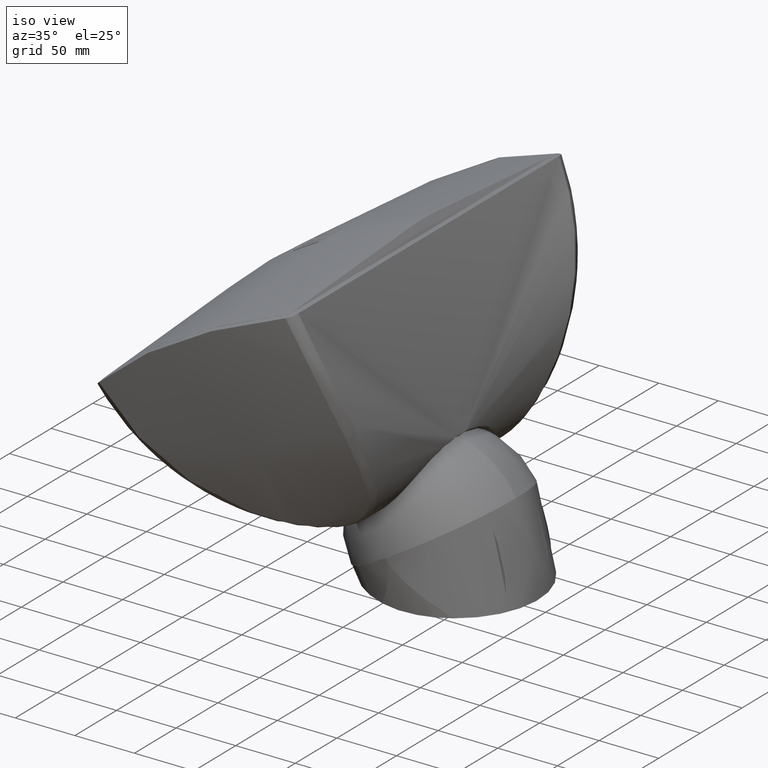
[diagram: clean part render]
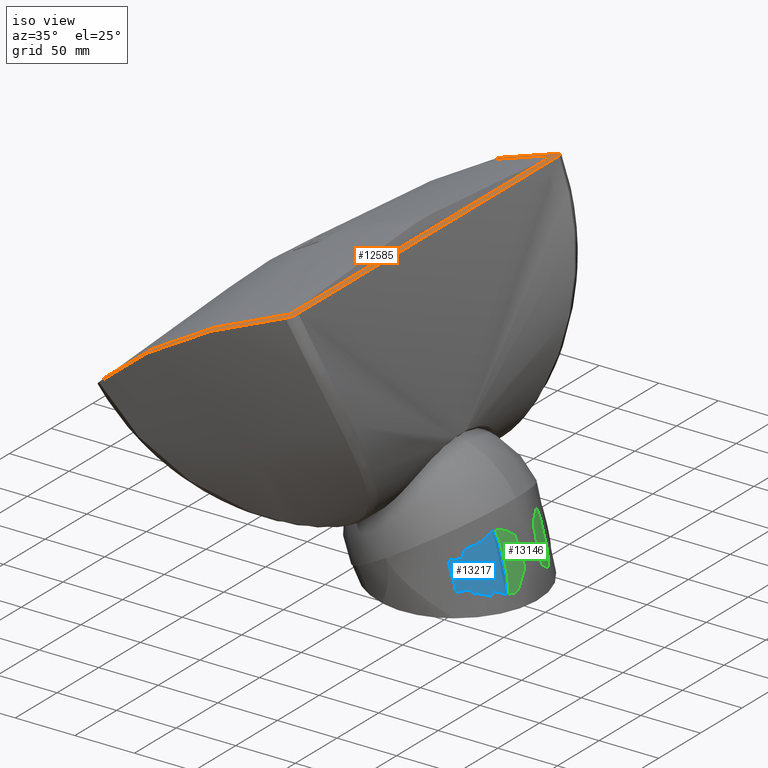
[diagram: same view with three faces highlighted in distinct colors, each labeled with its STEP entity id]
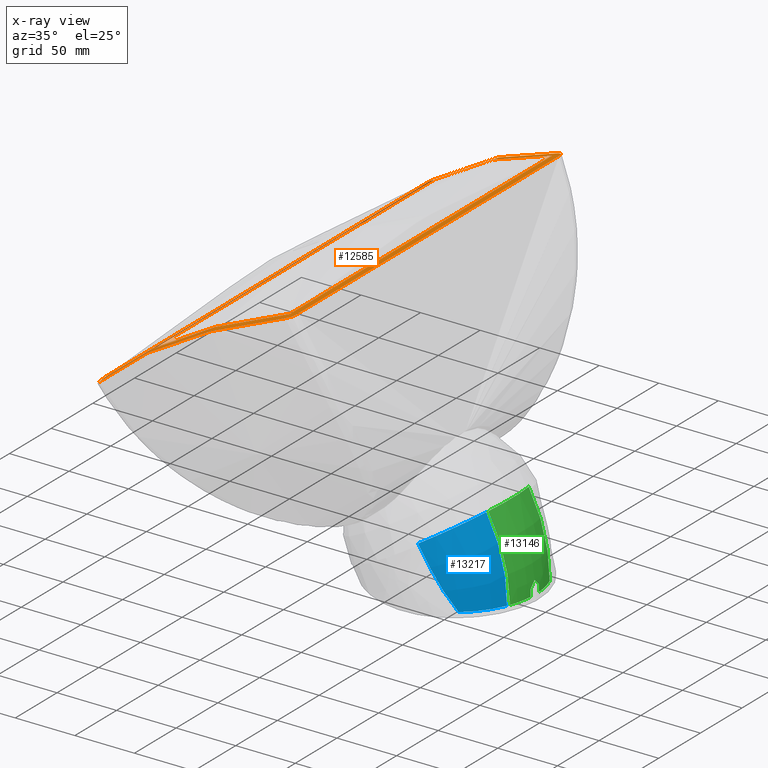
[diagram: x-ray of the same camera — body ghosted, the three highlighted faces saturated]
A machine part, iso view with three faces highlighted in distinct colors.
The next image is the same camera in x-ray (body ghosted, the three faces saturated) — at least one of them is partly hidden behind the body in this view.
Their STEP definitions:

[orange] entity #12585 — the highlighted face is a freeform B-spline surface patch.
#402=(
BOUNDED_SURFACE()
B_SPLINE_SURFACE(2,3,((#17975,#17976,#17977,#17978,#17979),(#17980,#17981,
#17982,#17983,#17984),(#17985,#17986,#17987,#17988,#17989)),
 .UNSPECIFIED.,.F.,.F.,.F.)
B_SPLINE_SURFACE_WITH_KNOTS((3,3),(4,1,4),(0.,1.),(0.,0.500000000000001,
1.),.UNSPECIFIED.)
GEOMETRIC_REPRESENTATION_ITEM()
RATIONAL_B_SPLINE_SURFACE(((1.,1.,1.,1.,1.),(0.931120962435819,0.931120962435819,
0.931120962435819,0.931120962435819,0.931120962435819),(1.,1.,1.,1.,1.)))
REPRESENTATION_ITEM('')
SURFACE()
);
#413=B_SPLINE_CURVE_WITH_KNOTS('',3,(#17627,#17628,#17629,#17630,#17631,
#17632,#17633,#17634,#17635,#17636,#17637,#17638,#17639,#17640),
 .UNSPECIFIED.,.F.,.F.,(4,2,2,2,2,2,4),(0.,7.87609388512865,15.7520777310479,
16.7373530918714,24.1191172242614,27.8088865304946,31.4986640254577),
 .UNSPECIFIED.);
#421=B_SPLINE_CURVE_WITH_KNOTS('',3,(#17961,#17962,#17963,#17964,#17965,
#17966,#17967,#17968,#17969,#17970,#17971,#17972,#17973,#17974),
 .UNSPECIFIED.,.F.,.F.,(4,2,2,2,2,2,4),(0.,7.87704079539368,15.7539733723026,
17.724263414675,24.6129060195072,28.0556022261401,31.4983050782141),
 .UNSPECIFIED.);
#422=B_SPLINE_CURVE_WITH_KNOTS('',3,(#17992,#17993,#17994,#17995,#17996,
#17997,#17998,#17999,#18000,#18001,#18002,#18003,#18004,#18005,#18006,#18007,
#18008,#18009),.UNSPECIFIED.,.F.,.F.,(4,2,2,2,2,2,2,2,4),(2.68450891936898E-5,
5.56382617109531,9.61055134631679,13.1921214229599,15.6720480374718,18.1520085031111,
21.7337465229039,25.7803270136378,31.3438646637583),.UNSPECIFIED.);
#423=B_SPLINE_CURVE_WITH_KNOTS('',3,(#18011,#18012,#18013,#18014,#18015,
#18016,#18017,#18018,#18019,#18020),.UNSPECIFIED.,.F.,.F.,(4,2,2,2,4),(-1.03590919254707,
-0.785224416782149,-0.517945613702384,-0.252065884385332,-3.11445588125187E-6),
 .UNSPECIFIED.);
#424=B_SPLINE_CURVE_WITH_KNOTS('',3,(#18022,#18023,#18024,#18025,#18026,
#18027,#18028,#18029,#18030,#18031),.UNSPECIFIED.,.F.,.F.,(4,2,2,2,4),(-18.3832821083283,
-13.789012530916,-9.1916730681031,-4.59431292214568,-2.25578076552983E-5),
 .UNSPECIFIED.);
#425=B_SPLINE_CURVE_WITH_KNOTS('',3,(#18033,#18034,#18035,#18036,#18037,
#18038,#18039,#18040,#18041,#18042),.UNSPECIFIED.,.F.,.F.,(4,2,2,2,4),(-1.03517453424356,
-0.78328979134791,-0.517597775299924,-0.250507720370656,0.),
 .UNSPECIFIED.);
#426=B_SPLINE_CURVE_WITH_KNOTS('',3,(#18044,#18045,#18046,#18047,#18048,
#18049,#18050,#18051,#18052,#18053,#18054,#18055,#18056,#18057,#18058,#18059,
#18060,#18061),.UNSPECIFIED.,.F.,.F.,(4,2,2,2,2,2,2,2,4),(3.70868746909139E-6,
5.56385032472596,9.61058759368324,13.192119745279,15.6720386804238,18.1520067242622,
21.7337825152711,25.7803409067136,31.3438299862299),.UNSPECIFIED.);
#427=B_SPLINE_CURVE_WITH_KNOTS('',3,(#18063,#18064,#18065,#18066,#18067,
#18068,#18069,#18070,#18071,#18072),.UNSPECIFIED.,.F.,.F.,(4,2,2,2,4),(-1.03586328558509,
-0.78519674557488,-0.51793454913669,-0.25205911528729,-1.65899128819207E-6),
 .UNSPECIFIED.);
#428=B_SPLINE_CURVE_WITH_KNOTS('',3,(#18074,#18075,#18076,#18077,#18078,
#18079,#18080,#18081,#18082,#18083),.UNSPECIFIED.,.F.,.F.,(4,2,2,2,4),(-18.3832783106298,
-13.7889963829195,-9.19166258353587,-4.59430768048142,-5.37170009738423E-6),
 .UNSPECIFIED.);
#429=B_SPLINE_CURVE_WITH_KNOTS('',3,(#18084,#18085,#18086,#18087,#18088,
#18089,#18090,#18091,#18092,#18093),.UNSPECIFIED.,.F.,.F.,(4,2,2,2,4),(-1.03515402706293,
-0.783266516835018,-0.517574825697129,-0.25049617295026,0.),
 .UNSPECIFIED.);
#430=B_SPLINE_CURVE_WITH_KNOTS('',3,(#18094,#18095,#18096,#18097,#18098,
#18099,#18100,#18101,#18102,#18103,#18104,#18105,#18106,#18107,#18108,#18109,
#18110,#18111),.UNSPECIFIED.,.F.,.F.,(4,2,2,2,2,2,2,2,4),(-18.290635800128,
-15.7217306614471,-13.1519357563355,-11.4352116979474,-9.14544577123647,
-6.85612799114411,-5.1395045391761,-2.56940187084942,0.),.UNSPECIFIED.);
#431=B_SPLINE_CURVE_WITH_KNOTS('',3,(#18112,#18113,#18114,#18115,#18116,
#18117,#18118,#18119,#18120,#18121,#18122,#18123,#18124,#18125,#18126,#18127,
#18128,#18129),.UNSPECIFIED.,.F.,.F.,(4,2,2,2,2,2,2,2,4),(-18.2906358001325,
-15.7217306614498,-13.1519357563369,-11.4352116979488,-9.14544577123902,
-6.85612799114595,-5.13950453917711,-2.56940187084998,0.),.UNSPECIFIED.);
#907=FACE_BOUND('',#4169,.T.);
#3448=FACE_OUTER_BOUND('',#4168,.T.);
#4168=EDGE_LOOP('',(#8441,#8442,#8443,#8444,#8445,#8446,#8447,#8448));
#4169=EDGE_LOOP('',(#8449,#8450,#8451,#8452));
#5259=VERTEX_POINT('',#17619);
#5260=VERTEX_POINT('',#17626);
#5261=VERTEX_POINT('',#17859);
#5263=VERTEX_POINT('',#17867);
#5268=VERTEX_POINT('',#17990);
#5269=VERTEX_POINT('',#17991);
#5270=VERTEX_POINT('',#18010);
#5271=VERTEX_POINT('',#18021);
#5272=VERTEX_POINT('',#18032);
#5273=VERTEX_POINT('',#18043);
#5274=VERTEX_POINT('',#18062);
#5275=VERTEX_POINT('',#18073);
#6521=EDGE_CURVE('',#5260,#5259,#413,.T.);
#6531=EDGE_CURVE('',#5263,#5261,#421,.T.);
#6532=EDGE_CURVE('',#5268,#5269,#422,.T.);
#6533=EDGE_CURVE('',#5268,#5270,#423,.T.);
#6534=EDGE_CURVE('',#5270,#5271,#424,.T.);
#6535=EDGE_CURVE('',#5271,#5272,#425,.T.);
#6536=EDGE_CURVE('',#5273,#5272,#426,.T.);
#6537=EDGE_CURVE('',#5273,#5274,#427,.T.);
#6538=EDGE_CURVE('',#5274,#5275,#428,.T.);
#6539=EDGE_CURVE('',#5275,#5269,#429,.T.);
#6540=EDGE_CURVE('',#5260,#5261,#430,.T.);
#6541=EDGE_CURVE('',#5263,#5259,#431,.T.);
#8441=ORIENTED_EDGE('',*,*,#6532,.F.);
#8442=ORIENTED_EDGE('',*,*,#6533,.T.);
#8443=ORIENTED_EDGE('',*,*,#6534,.T.);
#8444=ORIENTED_EDGE('',*,*,#6535,.T.);
#8445=ORIENTED_EDGE('',*,*,#6536,.F.);
#8446=ORIENTED_EDGE('',*,*,#6537,.T.);
#8447=ORIENTED_EDGE('',*,*,#6538,.T.);
#8448=ORIENTED_EDGE('',*,*,#6539,.T.);
#8449=ORIENTED_EDGE('',*,*,#6531,.T.);
#8450=ORIENTED_EDGE('',*,*,#6540,.F.);
#8451=ORIENTED_EDGE('',*,*,#6521,.T.);
#8452=ORIENTED_EDGE('',*,*,#6541,.F.);
#12585=ADVANCED_FACE('',(#3448,#907),#402,.T.);
#17619=CARTESIAN_POINT('',(89.812609096393,-157.330586068348,-20.6666021522332));
#17626=CARTESIAN_POINT('',(89.8126090963928,157.330586068348,-20.6666021522329));
#17627=CARTESIAN_POINT('Ctrl Pts',(89.8126090963929,157.330586068348,-20.66540777945));
#17628=CARTESIAN_POINT('Ctrl Pts',(89.9355355369639,131.242603436831,-17.7233006262705));
#17629=CARTESIAN_POINT('Ctrl Pts',(89.9971007993218,105.071686993668,-15.5038325986244));
#17630=CARTESIAN_POINT('Ctrl Pts',(90.0583963252833,52.6488487036926,-12.5345982290099));
#17631=CARTESIAN_POINT('Ctrl Pts',(90.0581947130526,26.3957005984514,-11.7847451605493));
#17632=CARTESIAN_POINT('Ctrl Pts',(90.0582302402126,-3.14183078220267,-11.7817146690336));
#17633=CARTESIAN_POINT('Ctrl Pts',(90.0581181746499,-6.42943745679729,-11.7930386192126));
#17634=CARTESIAN_POINT('Ctrl Pts',(90.0559026753774,-34.3754615977359,-11.9886883485314));
#17635=CARTESIAN_POINT('Ctrl Pts',(90.0457463995167,-59.020679310041,-12.817223437995));
#17636=CARTESIAN_POINT('Ctrl Pts',(89.9983772193191,-95.9478086116723,-15.0353850827407));
#17637=CARTESIAN_POINT('Ctrl Pts',(89.9768595867413,-108.244679939083,-15.9368967321822));
#17638=CARTESIAN_POINT('Ctrl Pts',(89.9128402386103,-132.810473426211,-18.0610882394863));
#17639=CARTESIAN_POINT('Ctrl Pts',(89.8703356918392,-145.079597490273,-19.2837861478282));
#17640=CARTESIAN_POINT('Ctrl Pts',(89.8126090963929,-157.330586068348,-20.66540777945));
#17859=CARTESIAN_POINT('',(-89.8126090963932,157.330586068348,-20.6666021522365));
#17867=CARTESIAN_POINT('',(-89.812609096393,-157.330586068348,-20.6666021522365));
#17961=CARTESIAN_POINT('Ctrl Pts',(-89.8126090963931,-157.330586068348,
-20.66540777945));
#17962=CARTESIAN_POINT('Ctrl Pts',(-89.9355503159028,-131.239466986339,
-17.7229469088687));
#17963=CARTESIAN_POINT('Ctrl Pts',(-89.9971441867773,-105.065354877695,
-15.503303783995));
#17964=CARTESIAN_POINT('Ctrl Pts',(-90.0584328916396,-52.6362094136866,
-12.5340679664532));
#17965=CARTESIAN_POINT('Ctrl Pts',(-90.0581957968256,-26.3798488589631,
-11.7843835775177));
#17966=CARTESIAN_POINT('Ctrl Pts',(-90.0582339460895,6.44420094669467,-11.7814660529286));
#17967=CARTESIAN_POINT('Ctrl Pts',(-90.0577752960362,13.0185941224065,-11.8275132087435));
#17968=CARTESIAN_POINT('Ctrl Pts',(-90.0524917197003,42.6062162795116,-12.2449262432712));
#17969=CARTESIAN_POINT('Ctrl Pts',(-90.0400227804486,65.5962689360618,-13.1397400106285));
#17970=CARTESIAN_POINT('Ctrl Pts',(-89.9912751666684,100.053895818123,-15.3313146904697));
#17971=CARTESIAN_POINT('Ctrl Pts',(-89.9694795168061,111.5272066092,-16.2027346800814));
#17972=CARTESIAN_POINT('Ctrl Pts',(-89.9070815699217,134.449063049577,-18.2250971652317));
#17973=CARTESIAN_POINT('Ctrl Pts',(-89.8664808635211,145.897685883216,-19.3760471611388));
#17974=CARTESIAN_POINT('Ctrl Pts',(-89.8126090963932,157.330586068348,-20.6654077794499));
#17975=CARTESIAN_POINT('Ctrl Pts',(127.648677160371,313.374232184798,-60.2700595970386));
#17976=CARTESIAN_POINT('Ctrl Pts',(127.648677160371,210.762783719457,-36.2503729967009));
#17977=CARTESIAN_POINT('Ctrl Pts',(127.648677160371,6.03652931258267E-13,
-11.9594743084079));
#17978=CARTESIAN_POINT('Ctrl Pts',(127.648677160371,-210.762783719456,-36.2503729967009));
#17979=CARTESIAN_POINT('Ctrl Pts',(127.648677160371,-313.374232184797,-60.2700595970384));
#17980=CARTESIAN_POINT('Ctrl Pts',(-3.57536842366402E-14,324.761966329399,
-11.5854939245376));
#17981=CARTESIAN_POINT('Ctrl Pts',(-1.65244468288305E-14,218.421711295728,
13.3070462072926));
#17982=CARTESIAN_POINT('Ctrl Pts',(1.90895286867892E-14,4.62646530327598E-13,
38.4806540273071));
#17983=CARTESIAN_POINT('Ctrl Pts',(4.71720670596686E-14,-218.421711295728,
13.3070462072927));
#17984=CARTESIAN_POINT('Ctrl Pts',(5.89539571239252E-14,-324.761966329397,
-11.5854939245374));
#17985=CARTESIAN_POINT('Ctrl Pts',(-127.648677160371,313.374232184798,-60.2700595970384));
#17986=CARTESIAN_POINT('Ctrl Pts',(-127.648677160371,210.762783719457,-36.2503729967009));
#17987=CARTESIAN_POINT('Ctrl Pts',(-127.648677160371,3.84168355189596E-13,
-11.9594743084078));
#17988=CARTESIAN_POINT('Ctrl Pts',(-127.648677160372,-210.762783719456,
-36.2503729967008));
#17989=CARTESIAN_POINT('Ctrl Pts',(-127.648677160371,-313.374232184797,
-60.2700595970384));
#17990=CARTESIAN_POINT('',(-96.2455570706602,-156.392995804763,-22.343868477647));
#17991=CARTESIAN_POINT('',(-96.2450555497549,156.392829039449,-22.3438106044299));
#17992=CARTESIAN_POINT('Ctrl Pts',(-96.2450566812065,-156.393002719647,
-22.3437861070701));
#17993=CARTESIAN_POINT('Ctrl Pts',(-96.3404006741039,-137.962497443854,
-20.2794662908088));
#17994=CARTESIAN_POINT('Ctrl Pts',(-96.3997252406058,-119.494842553471,
-18.5744147295039));
#17995=CARTESIAN_POINT('Ctrl Pts',(-96.469697400276,-87.5416207858188,-16.2595240837541));
#17996=CARTESIAN_POINT('Ctrl Pts',(-96.4890516463123,-74.0749130771202,
-15.4781089122189));
#17997=CARTESIAN_POINT('Ctrl Pts',(-96.5144138418679,-48.6693909548692,
-14.3724015549087));
#17998=CARTESIAN_POINT('Ctrl Pts',(-96.5216693915881,-36.7361293255282,
-14.0060268671635));
#17999=CARTESIAN_POINT('Ctrl Pts',(-96.5287032814034,-16.5327044405602,
-13.6457632433216));
#18000=CARTESIAN_POINT('Ctrl Pts',(-96.5300677146594,-8.26617112608177,
-13.5719881463046));
#18001=CARTESIAN_POINT('Ctrl Pts',(-96.5300675060651,8.26814514226469,-13.5719992197733));
#18002=CARTESIAN_POINT('Ctrl Pts',(-96.5287028278429,16.5347915857947,-13.645787394128));
#18003=CARTESIAN_POINT('Ctrl Pts',(-96.5216680357862,36.7388904717392,-14.006094979621));
#18004=CARTESIAN_POINT('Ctrl Pts',(-96.5144115599149,48.6727119772237,-14.3725129215153));
#18005=CARTESIAN_POINT('Ctrl Pts',(-96.4890470863608,74.0783109429498,-15.4782942838354));
#18006=CARTESIAN_POINT('Ctrl Pts',(-96.4696922581452,87.5445367822735,-16.259711914559));
#18007=CARTESIAN_POINT('Ctrl Pts',(-96.3997201058539,119.496406580087,-18.5745602448968));
#18008=CARTESIAN_POINT('Ctrl Pts',(-96.3403968490344,137.963193451172,-20.2795464635575));
#18009=CARTESIAN_POINT('Ctrl Pts',(-96.2450575534381,156.392834112402,-22.3437672221246));
#18010=CARTESIAN_POINT('',(-90.309156444077,-163.809560910225,-21.5528422577311));
#18011=CARTESIAN_POINT('Ctrl Pts',(-96.2455543379414,-156.392990459556,
-22.3439279654458));
#18012=CARTESIAN_POINT('Ctrl Pts',(-96.2412525626878,-157.222816918735,
-22.4368705961649));
#18013=CARTESIAN_POINT('Ctrl Pts',(-96.0992313492723,-158.049181116999,
-22.4904693768396));
#18014=CARTESIAN_POINT('Ctrl Pts',(-95.5343696926246,-159.679267569944,
-22.5165248657096));
#18015=CARTESIAN_POINT('Ctrl Pts',(-95.0988657083879,-160.462674893518,
-22.4831712554772));
#18016=CARTESIAN_POINT('Ctrl Pts',(-93.9878301985462,-161.840277103154,
-22.3304587522904));
#18017=CARTESIAN_POINT('Ctrl Pts',(-93.3227288817769,-162.424145967866,
-22.2128701827344));
#18018=CARTESIAN_POINT('Ctrl Pts',(-91.8733570952838,-163.313996759899,
-21.9177276540714));
#18019=CARTESIAN_POINT('Ctrl Pts',(-91.1063726316713,-163.627165439973,
-21.7455327334063));
#18020=CARTESIAN_POINT('Ctrl Pts',(-90.309202260524,-163.809744315875,-21.5528264735857));
#18021=CARTESIAN_POINT('',(90.3091564555302,-163.809560934248,-21.5528419837941));
#18022=CARTESIAN_POINT('Ctrl Pts',(-90.3091681494595,-163.809562979306,
-21.5527957563276));
#18023=CARTESIAN_POINT('Ctrl Pts',(-75.7795142843132,-167.138032701231,
-18.0405114194698));
#18024=CARTESIAN_POINT('Ctrl Pts',(-60.8799071173796,-169.617102268427,
-15.3495051387397));
#18025=CARTESIAN_POINT('Ctrl Pts',(-30.6317363091417,-172.925859638846,
-11.7387600533039));
#18026=CARTESIAN_POINT('Ctrl Pts',(-15.326849518755,-173.749462597282,-10.825222146052));
#18027=CARTESIAN_POINT('Ctrl Pts',(15.3265042930639,-173.749477479369,-10.8252057284598));
#18028=CARTESIAN_POINT('Ctrl Pts',(30.6314615273059,-172.925881992713,-11.7387354807054));
#18029=CARTESIAN_POINT('Ctrl Pts',(60.8797723630288,-169.617124707257,-15.349480830326));
#18030=CARTESIAN_POINT('Ctrl Pts',(75.7794485064347,-167.138047767369,-18.0404955211049));
#18031=CARTESIAN_POINT('Ctrl Pts',(90.3091680951636,-163.809562991744,-21.5527957432028));
#18032=CARTESIAN_POINT('',(96.2455534795262,-156.392999129502,-22.3438682572294));
#18033=CARTESIAN_POINT('Ctrl Pts',(90.3092024823083,-163.809745795912,-21.5528267090659));
#18034=CARTESIAN_POINT('Ctrl Pts',(91.1063723675889,-163.627166921119,-21.7455328387378));
#18035=CARTESIAN_POINT('Ctrl Pts',(91.8733562640453,-163.313998243327,-21.9177276033438));
#18036=CARTESIAN_POINT('Ctrl Pts',(93.3227271336732,-162.424147335898,-22.212869857851));
#18037=CARTESIAN_POINT('Ctrl Pts',(93.9878279706932,-161.840278345109,-22.3304582736023));
#18038=CARTESIAN_POINT('Ctrl Pts',(95.0988625228609,-160.462676241616,-22.4831705080552));
#18039=CARTESIAN_POINT('Ctrl Pts',(95.5343661251554,-159.67926912727,-22.5165240276193));
#18040=CARTESIAN_POINT('Ctrl Pts',(96.0992274334992,-158.049183532438,-22.490468528876));
#18041=CARTESIAN_POINT('Ctrl Pts',(96.241248738003,-157.22281980476,-22.436869824808));
#18042=CARTESIAN_POINT('Ctrl Pts',(96.2455507662612,-156.392993822661,-22.3439273190344));
#18043=CARTESIAN_POINT('',(96.2450581280061,156.392723055805,-22.3437547819634));
#18044=CARTESIAN_POINT('Ctrl Pts',(96.2450581279553,156.392723054728,-22.3437547830609));
#18045=CARTESIAN_POINT('Ctrl Pts',(96.3404025610809,137.962060691711,-20.2794210480166));
#18046=CARTESIAN_POINT('Ctrl Pts',(96.3997270704216,119.49424821349,-18.5743617197659));
#18047=CARTESIAN_POINT('Ctrl Pts',(96.469698752618,87.5408277491104,-16.2594738699713));
#18048=CARTESIAN_POINT('Ctrl Pts',(96.4890527417646,74.0740793442031,-15.4780641792009));
#18049=CARTESIAN_POINT('Ctrl Pts',(96.5144143560917,48.6686425470587,-14.3723764589495));
#18050=CARTESIAN_POINT('Ctrl Pts',(96.5216696971113,36.7355070837347,-14.006011518266));
#18051=CARTESIAN_POINT('Ctrl Pts',(96.5287033836139,16.5322340689492,-13.6457578008885));
#18052=CARTESIAN_POINT('Ctrl Pts',(96.5300677616438,8.26572629862403,-13.5719856520684));
#18053=CARTESIAN_POINT('Ctrl Pts',(96.5300674590308,-8.26859005395323,-13.5720017166298));
#18054=CARTESIAN_POINT('Ctrl Pts',(96.5287027256222,-16.5352619434698,-13.6457928370766));
#18055=CARTESIAN_POINT('Ctrl Pts',(96.5216677302152,-36.7395127484351,-14.0061103307325));
#18056=CARTESIAN_POINT('Ctrl Pts',(96.5144110456048,-48.6734604382352,-14.3725380213034));
#18057=CARTESIAN_POINT('Ctrl Pts',(96.4890460233916,-74.079112023889,-15.4783375988538));
#18058=CARTESIAN_POINT('Ctrl Pts',(96.4696909987377,-87.5452645000851,-16.2597583402876));
#18059=CARTESIAN_POINT('Ctrl Pts',(96.3997185664842,-119.496899663575,-18.5746046242769));
#18060=CARTESIAN_POINT('Ctrl Pts',(96.340395359374,-137.963525652823,-20.279581412917));
#18061=CARTESIAN_POINT('Ctrl Pts',(96.2450566642594,-156.393005995572,-22.3437864739923));
#18062=CARTESIAN_POINT('',(90.3091584857788,163.809565193418,-21.5527934167197));
#18063=CARTESIAN_POINT('Ctrl Pts',(96.2450061057461,156.392724444505,-22.3437399663155));
#18064=CARTESIAN_POINT('Ctrl Pts',(96.2406941543423,157.222491523512,-22.4366727633652));
#18065=CARTESIAN_POINT('Ctrl Pts',(96.0986898971692,158.048798902704,-22.4902699783827));
#18066=CARTESIAN_POINT('Ctrl Pts',(95.5339152191819,159.678794895404,-22.5163403430797));
#18067=CARTESIAN_POINT('Ctrl Pts',(95.0984779639325,160.462178040717,-22.4830033247471));
#18068=CARTESIAN_POINT('Ctrl Pts',(93.9875747321196,161.83980400937,-22.3303315650635));
#18069=CARTESIAN_POINT('Ctrl Pts',(93.3225247529171,162.423714179256,-22.212762516156));
#18070=CARTESIAN_POINT('Ctrl Pts',(91.8732380959856,163.31365434,-21.9176545726187));
#18071=CARTESIAN_POINT('Ctrl Pts',(91.1062895878183,163.626870327835,-21.7454752229014));
#18072=CARTESIAN_POINT('Ctrl Pts',(90.3091451474423,163.809494308664,-21.5527814117819));
#18073=CARTESIAN_POINT('',(-90.3093041530204,163.809531499211,-21.5528319995161));
#18074=CARTESIAN_POINT('Ctrl Pts',(90.3091584837067,163.809565193548,-21.5527934198049));
#18075=CARTESIAN_POINT('Ctrl Pts',(75.7794652144781,167.138043526682,-18.0404999604496));
#18076=CARTESIAN_POINT('Ctrl Pts',(60.8798168370016,169.617117104966,-15.3494890630404));
#18077=CARTESIAN_POINT('Ctrl Pts',(30.6316217366885,172.92586720721,-11.7387516791453));
#18078=CARTESIAN_POINT('Ctrl Pts',(15.3267534188888,173.74946537168,-10.8252190853965));
#18079=CARTESIAN_POINT('Ctrl Pts',(-15.3265640205362,173.749474705019,-10.8252087890614));
#18080=CARTESIAN_POINT('Ctrl Pts',(-30.6315035116912,172.925878321606,-11.7387395082232));
#18081=CARTESIAN_POINT('Ctrl Pts',(-60.8798359643537,169.617116829322,-15.3494894059381));
#18082=CARTESIAN_POINT('Ctrl Pts',(-75.7795499779186,167.138030409402,-18.0405143439635));
#18083=CARTESIAN_POINT('Ctrl Pts',(-90.3093050419809,163.809531619783,-21.5528288476768));
#18084=CARTESIAN_POINT('Ctrl Pts',(-90.309321631245,163.809616864175,-21.5528434365362));
#18085=CARTESIAN_POINT('Ctrl Pts',(-91.1064939681639,163.62700327536,-21.7455464189906));
#18086=CARTESIAN_POINT('Ctrl Pts',(-91.8734732883662,163.313795662214,-21.9177356735064));
#18087=CARTESIAN_POINT('Ctrl Pts',(-93.322811882596,162.423870852489,-22.2128609196561));
#18088=CARTESIAN_POINT('Ctrl Pts',(-93.9878863392837,161.839970646582,-22.3304385600727));
#18089=CARTESIAN_POINT('Ctrl Pts',(-95.0988402158994,160.462350940415,-22.4831263794743));
#18090=CARTESIAN_POINT('Ctrl Pts',(-95.534301964325,159.678963273093,-22.5164703000166));
#18091=CARTESIAN_POINT('Ctrl Pts',(-96.0991086797241,158.04893962017,-22.4904064600338));
#18092=CARTESIAN_POINT('Ctrl Pts',(-96.2411182322836,157.222612922357,-22.4368086753091));
#18093=CARTESIAN_POINT('Ctrl Pts',(-96.2454220617858,156.39282512711,-22.3438711255082));
#18094=CARTESIAN_POINT('Ctrl Pts',(89.8126090963928,157.330586068348,-20.66540777945));
#18095=CARTESIAN_POINT('Ctrl Pts',(81.6819260181309,159.205800766209,-18.7065860153447));
#18096=CARTESIAN_POINT('Ctrl Pts',(73.441291533934,160.811676109786,-17.0061790142743));
#18097=CARTESIAN_POINT('Ctrl Pts',(56.752533801238,163.494467675595,-14.1395839753837));
#18098=CARTESIAN_POINT('Ctrl Pts',(48.3133986688176,164.569485532898,-12.9764013034572));
#18099=CARTESIAN_POINT('Ctrl Pts',(34.181576594254,165.926106104162,-11.5073815698322));
#18100=CARTESIAN_POINT('Ctrl Pts',(28.5012359634835,166.352579716859,-11.0439298807775));
#18101=CARTESIAN_POINT('Ctrl Pts',(15.2039784726549,167.075151984156,-10.2561643192009));
#18102=CARTESIAN_POINT('Ctrl Pts',(7.58521864701477,167.279322731039,-10.0307860704523));
#18103=CARTESIAN_POINT('Ctrl Pts',(-7.65063719346985,167.278130286067,-10.032109429148));
#18104=CARTESIAN_POINT('Ctrl Pts',(-15.260975713767,167.072615523957,-10.2585113023727));
#18105=CARTESIAN_POINT('Ctrl Pts',(-28.5468050288311,166.349049480326,-11.0473319848521));
#18106=CARTESIAN_POINT('Ctrl Pts',(-34.223278933231,165.922431593294,-11.5111384423775));
#18107=CARTESIAN_POINT('Ctrl Pts',(-48.345516870694,164.565729844739,-12.980589241616));
#18108=CARTESIAN_POINT('Ctrl Pts',(-56.7777125204391,163.490828292432,-14.1434919968193));
#18109=CARTESIAN_POINT('Ctrl Pts',(-73.4533472373659,160.80932152905,-17.0086665911993));
#18110=CARTESIAN_POINT('Ctrl Pts',(-81.687893743807,159.204424403757,-18.7080237433712));
#18111=CARTESIAN_POINT('Ctrl Pts',(-89.8126090963932,157.330586068348,-20.6654077794501));
#18112=CARTESIAN_POINT('Ctrl Pts',(-89.8126090963929,-157.330586068348,
-20.6654077794498));
#18113=CARTESIAN_POINT('Ctrl Pts',(-81.681926018137,-159.205800766208,-18.7065860153459));
#18114=CARTESIAN_POINT('Ctrl Pts',(-73.4412915339405,-160.811676109785,
-17.0061790142755));
#18115=CARTESIAN_POINT('Ctrl Pts',(-56.7525338012466,-163.494467675594,
-14.139583975385));
#18116=CARTESIAN_POINT('Ctrl Pts',(-48.3133986688279,-164.569485532897,
-12.9764013034585));
#18117=CARTESIAN_POINT('Ctrl Pts',(-34.1815765942733,-165.92610610416,-11.507381569834));
#18118=CARTESIAN_POINT('Ctrl Pts',(-28.5012359635026,-166.352579716858,
-11.0439298807789));
#18119=CARTESIAN_POINT('Ctrl Pts',(-15.2039784726776,-167.075151984156,
-10.2561643192019));
#18120=CARTESIAN_POINT('Ctrl Pts',(-7.58521864704141,-167.279322731039,
-10.0307860704529));
#18121=CARTESIAN_POINT('Ctrl Pts',(7.65063719345212,-167.278130286068,-10.0321094291476));
#18122=CARTESIAN_POINT('Ctrl Pts',(15.2609757137486,-167.072615523958,-10.2585113023721));
#18123=CARTESIAN_POINT('Ctrl Pts',(28.5468050288126,-166.349049480328,-11.0473319848508));
#18124=CARTESIAN_POINT('Ctrl Pts',(34.223278933213,-165.922431593296,-11.5111384423759));
#18125=CARTESIAN_POINT('Ctrl Pts',(48.3455168706826,-164.565729844741,-12.9805892416146));
#18126=CARTESIAN_POINT('Ctrl Pts',(56.7777125204298,-163.490828292434,-14.143491996818));
#18127=CARTESIAN_POINT('Ctrl Pts',(73.4533472373613,-160.809321529052,-17.0086665911985));
#18128=CARTESIAN_POINT('Ctrl Pts',(81.6878937438049,-159.204424403757,-18.7080237433707));
#18129=CARTESIAN_POINT('Ctrl Pts',(89.8126090963929,-157.330586068348,-20.66540777945));

[blue] entity #13217 — the highlighted toroidal blend (fillet) surface has major radius 70 mm and minor (blend) radius 67.5 mm.
#401=TOROIDAL_SURFACE('',#14240,70.,67.5);
#753=B_SPLINE_CURVE_WITH_KNOTS('',3,(#29764,#29765,#29766,#29767,#29768,
#29769,#29770,#29771,#29772,#29773,#29774,#29775,#29776,#29777),
 .UNSPECIFIED.,.F.,.F.,(4,2,2,2,2,2,4),(-58.7941281307916,-57.569184028183,
-56.3442399255745,-55.119295822966,-53.8943517203575,-52.6703762421075,
-52.2418896489067),.UNSPECIFIED.);
#754=B_SPLINE_CURVE_WITH_KNOTS('',3,(#29790,#29791,#29792,#29793,#29794,
#29795,#29796,#29797,#29798,#29799),.UNSPECIFIED.,.F.,.F.,(4,2,2,2,4),(-29.940057003517,
-29.4248610095143,-27.8095432744151,-26.194225539316,-24.6289678374227),
 .UNSPECIFIED.);
#4080=FACE_OUTER_BOUND('',#4890,.T.);
#4890=EDGE_LOOP('',(#11660,#11661,#11662,#11663));
#5159=CIRCLE('',#14241,67.5);
#5160=CIRCLE('',#14242,67.5);
#6330=VERTEX_POINT('',#29762);
#6331=VERTEX_POINT('',#29763);
#6335=VERTEX_POINT('',#29788);
#6336=VERTEX_POINT('',#29789);
#8111=EDGE_CURVE('',#6330,#6331,#753,.T.);
#8117=EDGE_CURVE('',#6335,#6336,#754,.T.);
#8269=EDGE_CURVE('',#6335,#6331,#5159,.T.);
#8270=EDGE_CURVE('',#6336,#6330,#5160,.T.);
#11660=ORIENTED_EDGE('',*,*,#8111,.T.);
#11661=ORIENTED_EDGE('',*,*,#8269,.F.);
#11662=ORIENTED_EDGE('',*,*,#8117,.T.);
#11663=ORIENTED_EDGE('',*,*,#8270,.T.);
#13217=ADVANCED_FACE('',(#4080),#401,.F.);
#14240=AXIS2_PLACEMENT_3D('',#30176,#17175,#17176);
#14241=AXIS2_PLACEMENT_3D('',#30177,#17177,#17178);
#14242=AXIS2_PLACEMENT_3D('',#30178,#17179,#17180);
#17175=DIRECTION('center_axis',(1.,1.77635683940025E-16,0.));
#17176=DIRECTION('ref_axis',(0.,0.,-1.));
#17177=DIRECTION('center_axis',(0.,0.,1.));
#17178=DIRECTION('ref_axis',(1.,0.,0.));
#17179=DIRECTION('center_axis',(8.88178419700125E-17,-0.5,0.866025403784439));
#17180=DIRECTION('ref_axis',(1.,1.77635683940025E-16,1.23259516440783E-32));
#29762=CARTESIAN_POINT('',(25.75,44.6577905622666,66.1977062458123));
#29763=CARTESIAN_POINT('',(26.0962365120387,62.2513970920151,0.));
#29764=CARTESIAN_POINT('Ctrl Pts',(25.75,44.6577905622698,66.1977062458069));
#29765=CARTESIAN_POINT('Ctrl Pts',(25.7713791601442,46.6916903916674,62.6572424470794));
#29766=CARTESIAN_POINT('Ctrl Pts',(25.793745794287,48.653320044134,58.8572862527649));
#29767=CARTESIAN_POINT('Ctrl Pts',(25.8392070081362,52.2536012160376,50.9103688497559));
#29768=CARTESIAN_POINT('Ctrl Pts',(25.8623015118477,53.8921179194751,46.7633465641105));
#29769=CARTESIAN_POINT('Ctrl Pts',(25.9080103499597,56.7367252839405,38.3255322194989));
#29770=CARTESIAN_POINT('Ctrl Pts',(25.9306344849826,57.9434258776506,34.032930978524));
#29771=CARTESIAN_POINT('Ctrl Pts',(25.9742936923034,59.8893954597144,25.5282920096822));
#29772=CARTESIAN_POINT('Ctrl Pts',(25.9953289926401,60.6288087398892,21.3162872994343));
#29773=CARTESIAN_POINT('Ctrl Pts',(26.0347840258327,61.677971045549,13.2210210066368));
#29774=CARTESIAN_POINT('Ctrl Pts',(26.0550308689464,62.036590091327,8.96304275357913));
#29775=CARTESIAN_POINT('Ctrl Pts',(26.0822078394217,62.2301784791946,3.08148618694465));
#29776=CARTESIAN_POINT('Ctrl Pts',(26.0892414226842,62.2543294841339,1.54431687479985));
#29777=CARTESIAN_POINT('Ctrl Pts',(26.0962365120387,62.251397092015,-3.19189119579733E-14));
#29788=CARTESIAN_POINT('',(53.6993298227438,40.8978236167669,0.));
#29789=CARTESIAN_POINT('',(62.3954124916247,12.92193241236,47.875));
#29790=CARTESIAN_POINT('Ctrl Pts',(53.6993298227438,40.8978236167669,-2.22044604925031E-15));
#29791=CARTESIAN_POINT('Ctrl Pts',(54.3399066778981,40.0567385716535,1.43934454994085));
#29792=CARTESIAN_POINT('Ctrl Pts',(54.9397503905064,39.2000284095976,2.90542828285042));
#29793=CARTESIAN_POINT('Ctrl Pts',(57.2546814955633,35.6035769442014,9.06001734125795));
#29794=CARTESIAN_POINT('Ctrl Pts',(58.6124970047368,32.7485016271314,13.9458931764912));
#29795=CARTESIAN_POINT('Ctrl Pts',(60.6529981889393,26.9562691262967,23.8581111269879));
#29796=CARTESIAN_POINT('Ctrl Pts',(61.3395853541665,24.018546375639,28.885421093992));
#29797=CARTESIAN_POINT('Ctrl Pts',(62.1968882856079,18.3228152476737,38.6324967370509));
#29798=CARTESIAN_POINT('Ctrl Pts',(62.3841049279845,15.562107806428,43.3568813074632));
#29799=CARTESIAN_POINT('Ctrl Pts',(62.3954124916247,12.92193241236,47.875));
#30176=CARTESIAN_POINT('Origin',(8.88178419700125E-15,-70.,0.));
#30177=CARTESIAN_POINT('Origin',(0.,0.,0.));
#30178=CARTESIAN_POINT('Origin',(0.,-9.37822173508929,35.));

[green] entity #13146 — the highlighted toroidal blend (fillet) surface has major radius 70 mm and minor (blend) radius 67.5 mm.
#396=TOROIDAL_SURFACE('',#14053,70.,67.5);
#749=B_SPLINE_CURVE_WITH_KNOTS('',3,(#29550,#29551,#29552,#29553,#29554,
#29555,#29556,#29557,#29558,#29559,#29560,#29561,#29562,#29563,#29564,#29565,
#29566,#29567,#29568,#29569,#29570,#29571),.UNSPECIFIED.,.F.,.F.,(4,2,2,
2,2,2,2,2,2,2,4),(-1.61617916426847,-1.50276425945666,-1.38962878822566,
-1.18731086757582,-0.994535270216582,-0.806641023860533,-0.619028876882988,
-0.427351385963872,-0.226573802522183,-0.113485819238331,0.),
 .UNSPECIFIED.);
#751=B_SPLINE_CURVE_WITH_KNOTS('',3,(#29599,#29600,#29601,#29602,#29603,
#29604,#29605,#29606,#29607,#29608,#29609,#29610,#29611,#29612),
 .UNSPECIFIED.,.F.,.F.,(4,2,2,2,2,2,4),(13.1322817699786,13.5629569213746,
14.7953321915279,16.026818149283,17.2583041070381,18.4897900647931,19.7212760225482),
 .UNSPECIFIED.);
#752=B_SPLINE_CURVE_WITH_KNOTS('',3,(#29615,#29616,#29617,#29618,#29619,
#29620,#29621,#29622,#29623,#29624,#29625,#29626,#29627,#29628),
 .UNSPECIFIED.,.F.,.F.,(4,2,2,2,2,2,4),(19.6701557272117,20.901641684967,
22.1331276427222,23.3646136004775,24.5960995582327,25.8284748283862,26.2591499797814),
 .UNSPECIFIED.);
#4009=FACE_OUTER_BOUND('',#4819,.T.);
#4819=EDGE_LOOP('',(#11360,#11361,#11362,#11363,#11364,#11365,#11366,#11367));
#5084=CIRCLE('',#13808,67.5);
#5085=CIRCLE('',#13814,67.5);
#5133=CIRCLE('',#14036,137.314560089181);
#5141=CIRCLE('',#14054,137.314560089181);
#5142=CIRCLE('',#14055,67.5);
#5980=VERTEX_POINT('',#25634);
#5981=VERTEX_POINT('',#25636);
#5986=VERTEX_POINT('',#25648);
#5992=VERTEX_POINT('',#25659);
#6268=VERTEX_POINT('',#29313);
#6279=VERTEX_POINT('',#29549);
#6281=VERTEX_POINT('',#29598);
#6282=VERTEX_POINT('',#29613);
#7610=EDGE_CURVE('',#5980,#5981,#5084,.T.);
#7622=EDGE_CURVE('',#5992,#5986,#5085,.T.);
#8021=EDGE_CURVE('',#5980,#6268,#5133,.T.);
#8044=EDGE_CURVE('',#6268,#6279,#749,.T.);
#8047=EDGE_CURVE('',#6279,#5986,#5141,.T.);
#8048=EDGE_CURVE('',#5992,#6281,#751,.T.);
#8049=EDGE_CURVE('',#6281,#6282,#5142,.T.);
#8050=EDGE_CURVE('',#6282,#5981,#752,.T.);
#11360=ORIENTED_EDGE('',*,*,#8021,.T.);
#11361=ORIENTED_EDGE('',*,*,#8044,.T.);
#11362=ORIENTED_EDGE('',*,*,#8047,.T.);
#11363=ORIENTED_EDGE('',*,*,#7622,.F.);
#11364=ORIENTED_EDGE('',*,*,#8048,.T.);
#11365=ORIENTED_EDGE('',*,*,#8049,.T.);
#11366=ORIENTED_EDGE('',*,*,#8050,.T.);
#11367=ORIENTED_EDGE('',*,*,#7610,.F.);
#13146=ADVANCED_FACE('',(#4009),#396,.F.);
#13808=AXIS2_PLACEMENT_3D('',#25637,#15960,#15961);
#13814=AXIS2_PLACEMENT_3D('',#25661,#15979,#15980);
#14036=AXIS2_PLACEMENT_3D('',#29315,#16662,#16663);
#14053=AXIS2_PLACEMENT_3D('',#29596,#16709,#16710);
#14054=AXIS2_PLACEMENT_3D('',#29597,#16711,#16712);
#14055=AXIS2_PLACEMENT_3D('',#29614,#16713,#16714);
#15960=DIRECTION('center_axis',(0.,0.,1.));
#15961=DIRECTION('ref_axis',(1.,0.,0.));
#15979=DIRECTION('center_axis',(0.,0.,1.));
#15980=DIRECTION('ref_axis',(1.,0.,0.));
#16662=DIRECTION('center_axis',(1.,7.612427232683E-16,3.45541391563136E-16));
#16663=DIRECTION('ref_axis',(3.45541391563136E-16,0.,-1.));
#16709=DIRECTION('center_axis',(1.,1.77635683940025E-16,0.));
#16710=DIRECTION('ref_axis',(0.,0.,-1.));
#16711=DIRECTION('center_axis',(-1.,-8.88178419700125E-17,7.93016446160827E-16));
#16712=DIRECTION('ref_axis',(-7.93016446160827E-16,0.,-1.));
#16713=DIRECTION('center_axis',(8.88178419700125E-17,-0.5,0.866025403784439));
#16714=DIRECTION('ref_axis',(1.,1.77635683940025E-16,1.23259516440783E-32));
#25634=CARTESIAN_POINT('',(-5.00000000000017,67.3145600891813,0.));
#25636=CARTESIAN_POINT('',(-23.9014721496631,63.1266158532111,0.));
#25637=CARTESIAN_POINT('Origin',(0.,0.,0.));
#25648=CARTESIAN_POINT('',(5.00000000000016,67.3145600891813,0.));
#25659=CARTESIAN_POINT('',(23.9014721496631,63.126615853211,0.));
#25661=CARTESIAN_POINT('Origin',(0.,0.,0.));
#29313=CARTESIAN_POINT('',(-5.00000000000017,67.195966584108,5.70571341180817));
#29315=CARTESIAN_POINT('Origin',(-5.00000000000007,-70.,-1.7277069578157E-15));
#29549=CARTESIAN_POINT('',(4.99999999999983,67.1959665841081,5.70571341180822));
#29550=CARTESIAN_POINT('Ctrl Pts',(-5.00000000000017,67.195966584108,5.70571341180819));
#29551=CARTESIAN_POINT('Ctrl Pts',(-5.00000000000017,67.1803358639489,6.08155979697767));
#29552=CARTESIAN_POINT('Ctrl Pts',(-4.96112591868631,67.1660898822043,6.45676828970021));
#29553=CARTESIAN_POINT('Ctrl Pts',(-4.80680243616454,67.1407254368954,7.19176958331474));
#29554=CARTESIAN_POINT('Ctrl Pts',(-4.69184872744371,67.1296470149451,7.55014984652605));
#29555=CARTESIAN_POINT('Ctrl Pts',(-4.26984612578751,67.1030609886356,8.50705332801286));
#29556=CARTESIAN_POINT('Ctrl Pts',(-3.88589838347571,67.0911783203918,9.06509793063528));
#29557=CARTESIAN_POINT('Ctrl Pts',(-2.94787497450269,67.0751594914277,9.97851300564158));
#29558=CARTESIAN_POINT('Ctrl Pts',(-2.41059404037488,67.0707270558646,10.3343404945022));
#29559=CARTESIAN_POINT('Ctrl Pts',(-1.24247446188072,67.0654387124906,10.8122077701732));
#29560=CARTESIAN_POINT('Ctrl Pts',(-0.626364542607496,67.0644657352547,
10.9350911470644));
#29561=CARTESIAN_POINT('Ctrl Pts',(0.620705051951151,67.0644706248499,10.9355784042974));
#29562=CARTESIAN_POINT('Ctrl Pts',(1.2363249888876,67.0654130478301,10.8141320560062));
#29563=CARTESIAN_POINT('Ctrl Pts',(2.40498767522897,67.0706967621142,10.3372685266929));
#29564=CARTESIAN_POINT('Ctrl Pts',(2.94200964961083,67.0750945962862,9.98295192293149));
#29565=CARTESIAN_POINT('Ctrl Pts',(3.88026924148331,67.0910435626869,9.07192755671555));
#29566=CARTESIAN_POINT('Ctrl Pts',(4.26441880209346,67.1028641357009,8.51567253664966));
#29567=CARTESIAN_POINT('Ctrl Pts',(4.68863267470763,67.1293653972775,7.55945660140172));
#29568=CARTESIAN_POINT('Ctrl Pts',(4.8047120537615,67.1404717807916,7.19955074537196));
#29569=CARTESIAN_POINT('Ctrl Pts',(4.96068751834618,67.1659313669128,6.46095674211761));
#29570=CARTESIAN_POINT('Ctrl Pts',(4.99999999999981,67.1802479897493,6.08367276425855));
#29571=CARTESIAN_POINT('Ctrl Pts',(4.99999999999983,67.1959665841081,5.70571341180823));
#29596=CARTESIAN_POINT('Origin',(8.88178419700125E-15,-70.,0.));
#29597=CARTESIAN_POINT('Origin',(5.00000000000017,-70.,-3.96508223080426E-15));
#29598=CARTESIAN_POINT('',(24.25,45.1757939282879,66.4967756286258));
#29599=CARTESIAN_POINT('Ctrl Pts',(23.9014721496631,63.1266158532111,5.55111512312578E-16));
#29600=CARTESIAN_POINT('Ctrl Pts',(23.9085173082684,63.1239483624876,1.55212552991564));
#29601=CARTESIAN_POINT('Ctrl Pts',(23.9156007212717,63.0940722934483,3.09697840472906));
#29602=CARTESIAN_POINT('Ctrl Pts',(23.9430039993968,62.8777263432295,9.01530340916929));
#29603=CARTESIAN_POINT('Ctrl Pts',(23.9634253843141,62.5005612339239,13.3010657116059));
#29604=CARTESIAN_POINT('Ctrl Pts',(24.0031846601483,61.4135763064587,21.4415895941891));
#29605=CARTESIAN_POINT('Ctrl Pts',(24.0243621082216,60.6537259847976,25.6731427484017));
#29606=CARTESIAN_POINT('Ctrl Pts',(24.0683068961516,58.6637378190599,34.2153465372897));
#29607=CARTESIAN_POINT('Ctrl Pts',(24.0910744621462,57.4334551629517,38.5259634348052));
#29608=CARTESIAN_POINT('Ctrl Pts',(24.1370635100249,54.5396386294638,46.9971613841958));
#29609=CARTESIAN_POINT('Ctrl Pts',(24.1602948682861,52.8754832799896,51.1595616619279));
#29610=CARTESIAN_POINT('Ctrl Pts',(24.2060164784608,49.2232982739052,59.1339374549064));
#29611=CARTESIAN_POINT('Ctrl Pts',(24.2285066572158,47.2354037822018,62.9459748740657));
#29612=CARTESIAN_POINT('Ctrl Pts',(24.25,45.1757939282848,66.4967756286311));
#29613=CARTESIAN_POINT('',(-24.25,45.1757939282879,66.4967756286258));
#29614=CARTESIAN_POINT('Origin',(0.,-9.37822173508929,35.));
#29615=CARTESIAN_POINT('Ctrl Pts',(-24.25,45.1757939282896,66.4967756286229));
#29616=CARTESIAN_POINT('Ctrl Pts',(-24.2285066572157,47.2354037822063,62.9459748740575));
#29617=CARTESIAN_POINT('Ctrl Pts',(-24.2060164784607,49.2232982739094,59.1339374548979));
#29618=CARTESIAN_POINT('Ctrl Pts',(-24.1602948682861,52.8754832799932,51.1595616619191));
#29619=CARTESIAN_POINT('Ctrl Pts',(-24.1370635100249,54.5396386294671,46.9971613841869));
#29620=CARTESIAN_POINT('Ctrl Pts',(-24.0910744621462,57.4334551629544,38.5259634347962));
#29621=CARTESIAN_POINT('Ctrl Pts',(-24.0683068961516,58.6637378190623,34.2153465372805));
#29622=CARTESIAN_POINT('Ctrl Pts',(-24.0243621082216,60.6537259847994,25.6731427483924));
#29623=CARTESIAN_POINT('Ctrl Pts',(-24.0031846601483,61.4135763064602,21.4415895941797));
#29624=CARTESIAN_POINT('Ctrl Pts',(-23.9634253843141,62.5005612339249,13.3010657115965));
#29625=CARTESIAN_POINT('Ctrl Pts',(-23.9430039993968,62.8777263432302,9.01530340915986));
#29626=CARTESIAN_POINT('Ctrl Pts',(-23.9156007212717,63.0940722934484,3.09697840472272));
#29627=CARTESIAN_POINT('Ctrl Pts',(-23.9085173082684,63.1239483624876,1.55212552991245));
#29628=CARTESIAN_POINT('Ctrl Pts',(-23.9014721496631,63.1266158532111,-1.69309011255336E-14));